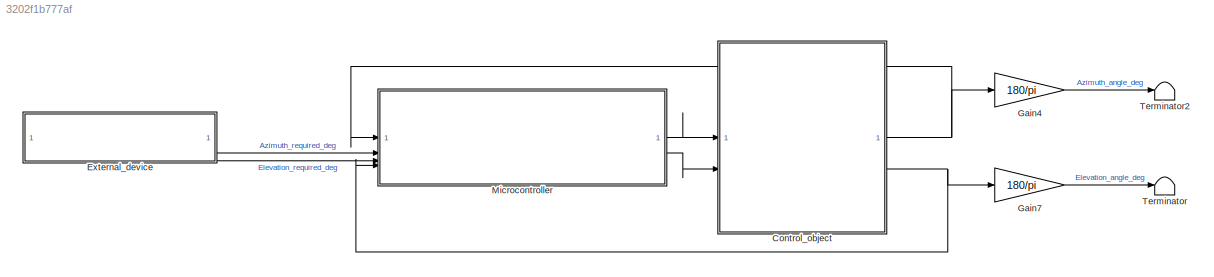
MODEL slx_3202f1b777af
KIND model
CONFIG AbsTol = auto
CONFIG EnableMultiTasking = off
CONFIG FixedStep = 0.001
CONFIG MaxStep = auto
CONFIG MinStep = auto
CONFIG RelTol = 1e-2
CONFIG SampleTimeConstraint = Unconstrained
CONFIG SolverName = ode23tb
CONFIG StartTime = 0.0
CONFIG StopTime = 630
BLOCK [ModelReference] Control_object
  InputSignalHandling = Zero-order hold
  ModelNameDialog = Control_object.slx
  ModelReferenceVersion = 2.5
BLOCK [ModelReference] External_device
  ModelNameDialog = External_device.slx
  ModelReferenceVersion = 1.4
BLOCK [Gain] Gain4
  Gain = 180/pi
BLOCK [Gain] Gain7
  Gain = 180/pi
BLOCK [ModelReference] Microcontroller
  InputSignalHandling = Zero-order hold
  ModelNameDialog = Microcontroller.slx
  ModelReferenceVersion = 2.1
BLOCK [Terminator] Terminator
BLOCK [Terminator] Terminator2
NET Control_object:1 -> Gain4:1, Microcontroller:1
NET Control_object:2 -> Gain7:1, Microcontroller:4
LINE External_device:1 -> Microcontroller:2
LINE External_device:2 -> Microcontroller:3
LINE Gain4:1 -> Terminator2:1
LINE Gain7:1 -> Terminator:1
LINE Microcontroller:1 -> Control_object:1
LINE Microcontroller:2 -> Control_object:2
note: NET lines group one-source signal fan-out (src -> all destinations, sorted); 1:1 wires keep LINE
